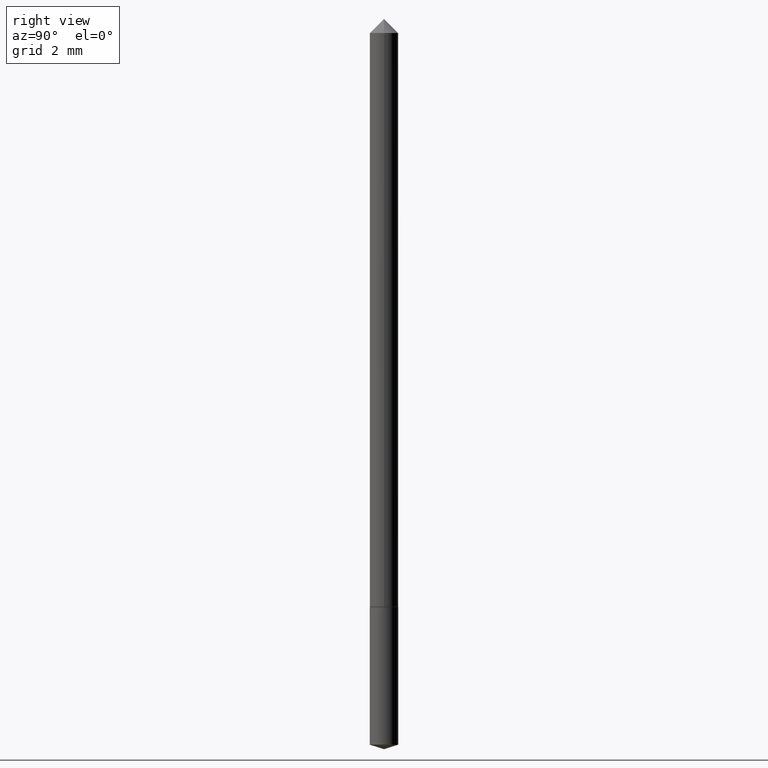
[diagram: clean part render]
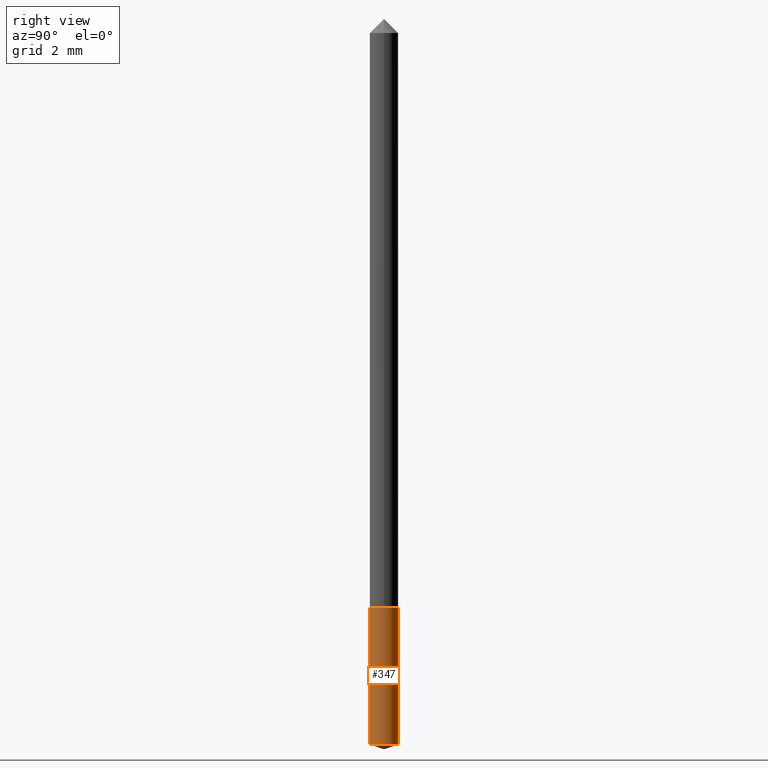
[diagram: same view with one face highlighted and labeled with its STEP entity id]
A machine part, right view. The second image highlights one B-rep face of the part: STEP entity #347.
In plain terms, the highlighted cylindrical surface (edge-blend (fillet) strip) has radius 0.5004 mm, axis along (-0, 0, 1).
Its self-contained STEP definition (entity closure, byte-faithful):
#8 = VERTEX_POINT ( 'NONE', #210 ) ;
#9 = CARTESIAN_POINT ( 'NONE',  ( 2.021913608953870993E-29, -2.886756770955512686E-15, -0.8268000000000000904 ) ) ;
#11 = CIRCLE ( 'NONE', #219, 0.01969999999999999876 ) ;
#24 = ORIENTED_EDGE ( 'NONE', *, *, #359, .T. ) ;
#29 = EDGE_CURVE ( 'NONE', #101, #8, #68, .T. ) ;
#42 = CARTESIAN_POINT ( 'NONE',  ( 2.021913608953870993E-29, -2.886756770955512686E-15, -0.8268000000000000904 ) ) ;
#56 = ORIENTED_EDGE ( 'NONE', *, *, #29, .F. ) ;
#60 = ORIENTED_EDGE ( 'NONE', *, *, #79, .F. ) ;
#68 = LINE ( 'NONE', #293, #263 ) ;
#79 = EDGE_CURVE ( 'NONE', #8, #336, #11, .T. ) ;
#86 = DIRECTION ( 'NONE',  ( -6.982962677686265133E-15, -1.000000000000000000, 6.933624349401683764E-15 ) ) ;
#87 = EDGE_LOOP ( 'NONE', ( #24, #358, #60, #56 ) ) ;
#101 = VERTEX_POINT ( 'NONE', #256 ) ;
#107 = DIRECTION ( 'NONE',  ( -6.982962677686265133E-15, -1.000000000000000000, 6.933624349401683764E-15 ) ) ;
#110 = VERTEX_POINT ( 'NONE', #227 ) ;
#111 = CARTESIAN_POINT ( 'NONE',  ( 1.399769189447645769E-16, 0.01969999999999711218, -0.8268000000000002014 ) ) ;
#130 = AXIS2_PLACEMENT_3D ( 'NONE', #42, #275, #186 ) ;
#157 = DIRECTION ( 'NONE',  ( -2.445361441338074995E-29, 3.491635091414965774E-15, 1.000000000000000000 ) ) ;
#160 = DIRECTION ( 'NONE',  ( -2.445361441338074995E-29, 3.491635091414965380E-15, 1.000000000000000000 ) ) ;
#186 = DIRECTION ( 'NONE',  ( -6.982962677686265133E-15, -1.000000000000000000, 6.933624349401683764E-15 ) ) ;
#210 = CARTESIAN_POINT ( 'NONE',  ( -1.375643647503991970E-16, -0.01970000000000288187, -0.8267999999999998684 ) ) ;
#219 = AXIS2_PLACEMENT_3D ( 'NONE', #9, #342, #86 ) ;
#227 = CARTESIAN_POINT ( 'NONE',  ( 1.399769189447645276E-16, 0.01969999999999644258, -1.017388613859084412 ) ) ;
#245 = CARTESIAN_POINT ( 'NONE',  ( 2.487971656442946993E-29, -3.552222663130027981E-15, -1.017388613859084190 ) ) ;
#253 = CIRCLE ( 'NONE', #277, 0.01969999999999999876 ) ;
#256 = CARTESIAN_POINT ( 'NONE',  ( -1.375643647503945132E-16, -0.01970000000000354454, -1.017388613859084190 ) ) ;
#263 = VECTOR ( 'NONE', #264, 39.37007874015748143 ) ;
#264 = DIRECTION ( 'NONE',  ( -2.445361441338074995E-29, 3.491635091414965774E-15, 1.000000000000000000 ) ) ;
#265 = EDGE_CURVE ( 'NONE', #110, #336, #266, .T. ) ;
#266 = LINE ( 'NONE', #349, #344 ) ;
#275 = DIRECTION ( 'NONE',  ( -2.445361441338074995E-29, 3.491635091414965380E-15, 1.000000000000000000 ) ) ;
#277 = AXIS2_PLACEMENT_3D ( 'NONE', #245, #160, #107 ) ;
#293 = CARTESIAN_POINT ( 'NONE',  ( -1.375643647503991970E-16, -0.01970000000000288187, -0.8267999999999998684 ) ) ;
#301 = CYLINDRICAL_SURFACE ( 'NONE', #130, 0.01969999999999999876 ) ;
#334 = FACE_OUTER_BOUND ( 'NONE', #87, .T. ) ;
#336 = VERTEX_POINT ( 'NONE', #111 ) ;
#342 = DIRECTION ( 'NONE',  ( -2.445361441338074995E-29, 3.491635091414965380E-15, 1.000000000000000000 ) ) ;
#344 = VECTOR ( 'NONE', #157, 39.37007874015748143 ) ;
#347 = ADVANCED_FACE ( 'NONE', ( #334 ), #301, .T. ) ;
#349 = CARTESIAN_POINT ( 'NONE',  ( 1.399769189447599177E-16, 0.01969999999999711218, -0.8268000000000002014 ) ) ;
#358 = ORIENTED_EDGE ( 'NONE', *, *, #265, .T. ) ;
#359 = EDGE_CURVE ( 'NONE', #101, #110, #253, .T. ) ;